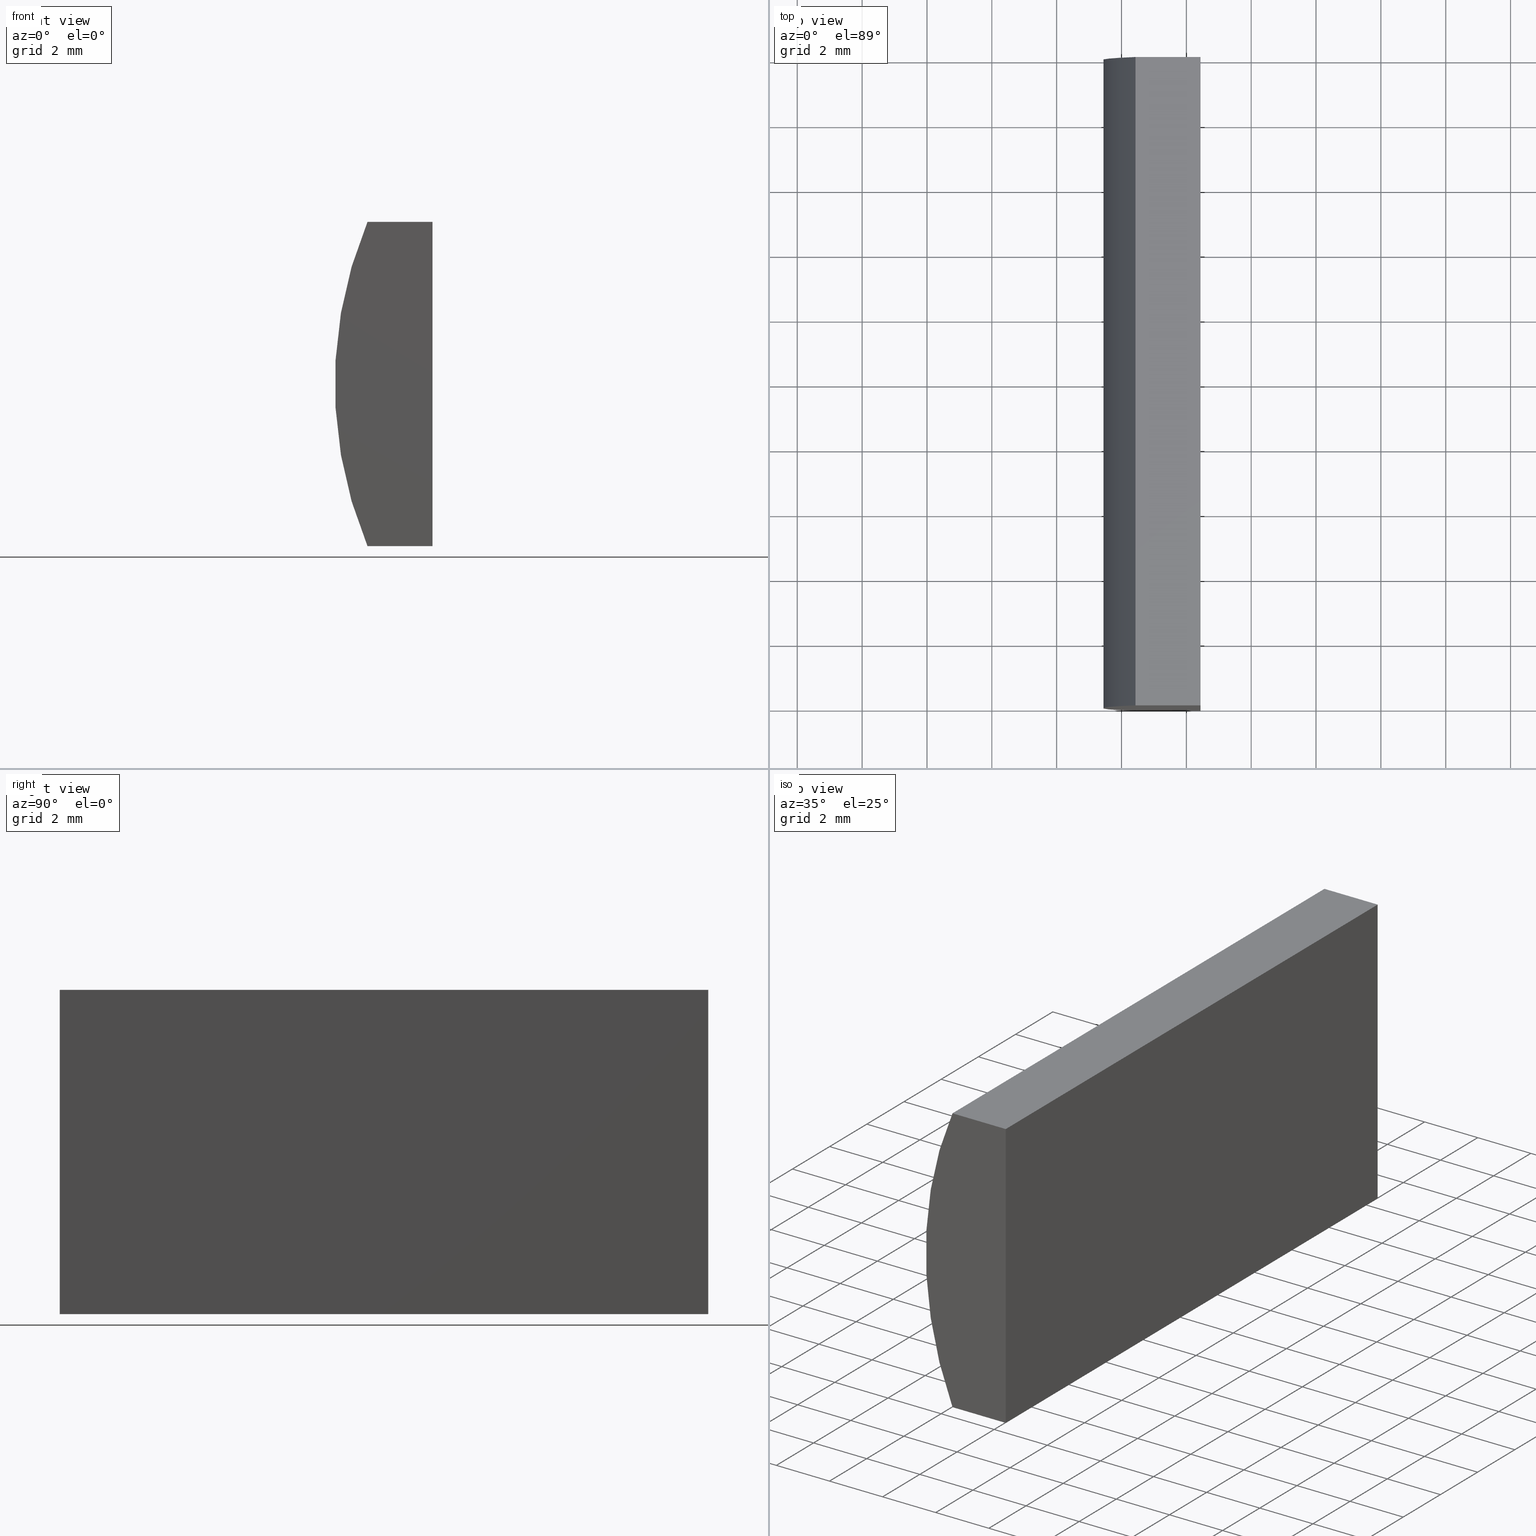
[diagram: canonical four-view strip — front | top / right | iso, engineering-drawing reading convention]
A machine part, canonical four-view strip (front | top / right | iso — engineering-drawing reading convention). The complete STEP part file that produces these views, byte-faithful:
ISO-10303-21;
HEADER;
FILE_DESCRIPTION (( 'STEP AP214' ),
    '1' );
FILE_NAME ('155027.STEP',
    '2019-06-17T06:05:55',
    ( 'user' ),
    ( '΢���й�' ),
    'SwSTEP 2.0',
    'SolidWorks 2016',
    '' );
FILE_SCHEMA (( 'AUTOMOTIVE_DESIGN' ));
ENDSEC;

DATA;
#1 = CARTESIAN_POINT ( 'NONE',  ( -7.568926660739147200, 20.00000000000000000, -5.000000000000000000 ) ) ;
#2 = EDGE_CURVE ( 'NONE', #11, #69, #25, .T. ) ;
#3 = EDGE_LOOP ( 'NONE', ( #35, #84, #134, #34 ) ) ;
#4 =( NAMED_UNIT ( * ) PLANE_ANGLE_UNIT ( ) SI_UNIT ( $, .RADIAN. ) );
#5 = ADVANCED_FACE ( 'NONE', ( #193 ), #18, .T. ) ;
#6 = PRODUCT_RELATED_PRODUCT_CATEGORY ( 'part', '', ( #139 ) ) ;
#7 = FACE_OUTER_BOUND ( 'NONE', #133, .T. ) ;
#8 = MECHANICAL_DESIGN_GEOMETRIC_PRESENTATION_REPRESENTATION (  '', ( #63 ), #100 ) ;
#9 = LINE ( 'NONE', #41, #49 ) ;
#10 = ORIENTED_EDGE ( 'NONE', *, *, #64, .T. ) ;
#11 = VERTEX_POINT ( 'NONE', #94 ) ;
#12 =( LENGTH_UNIT ( ) NAMED_UNIT ( * ) SI_UNIT ( .MILLI., .METRE. ) );
#13 = CARTESIAN_POINT ( 'NONE',  ( -5.564795665148737100, 20.00000000000000000, -5.000000000000000000 ) ) ;
#14 = VECTOR ( 'NONE', #136, 1000.000000000000000 ) ;
#15 = FILL_AREA_STYLE_COLOUR ( '', #83 ) ;
#16 = DIRECTION ( 'NONE',  ( 0.0000000000000000000, 1.000000000000000000, 0.0000000000000000000 ) ) ;
#17 = VERTEX_POINT ( 'NONE', #185 ) ;
#18 = CYLINDRICAL_SURFACE ( 'NONE', #179, 12.93000000000000100 ) ;
#19 = EDGE_LOOP ( 'NONE', ( #137, #152, #123, #161 ) ) ;
#20 = APPLICATION_CONTEXT ( 'automotive_design' ) ;
#21 = PRESENTATION_STYLE_ASSIGNMENT (( #78 ) ) ;
#22 = CARTESIAN_POINT ( 'NONE',  ( -5.564795665148737100, 20.00000000000000000, -5.000000000000000000 ) ) ;
#23 = PLANE ( 'NONE',  #160 ) ;
#24 =( GEOMETRIC_REPRESENTATION_CONTEXT ( 3 ) GLOBAL_UNCERTAINTY_ASSIGNED_CONTEXT ( ( #53 ) ) GLOBAL_UNIT_ASSIGNED_CONTEXT ( ( #199, #157, #201 ) ) REPRESENTATION_CONTEXT ( 'NONE', 'WORKASPACE' ) );
#25 = LINE ( 'NONE', #42, #14 ) ;
#26 = VERTEX_POINT ( 'NONE', #204 ) ;
#27 = SURFACE_SIDE_STYLE ('',( #149 ) ) ;
#28 = EDGE_CURVE ( 'NONE', #92, #26, #9, .T. ) ;
#29 = CARTESIAN_POINT ( 'NONE',  ( -7.568926660739147200, 0.0000000000000000000, 5.000000000000000000 ) ) ;
#30 = VECTOR ( 'NONE', #86, 1000.000000000000000 ) ;
#31 = FILL_AREA_STYLE_COLOUR ( '', #85 ) ;
#32 = CARTESIAN_POINT ( 'NONE',  ( 4.355204334851265500, 0.0000000000000000000, 4.286263797015675000E-017 ) ) ;
#33 = DIRECTION ( 'NONE',  ( -0.0000000000000000000, -1.000000000000000000, -0.0000000000000000000 ) ) ;
#34 = ORIENTED_EDGE ( 'NONE', *, *, #107, .T. ) ;
#35 = ORIENTED_EDGE ( 'NONE', *, *, #147, .T. ) ;
#36 = ADVANCED_FACE ( 'NONE', ( #177 ), #110, .F. ) ;
#37 = LINE ( 'NONE', #112, #74 ) ;
#38 = ORIENTED_EDGE ( 'NONE', *, *, #173, .F. ) ;
#39 = STYLED_ITEM ( 'NONE', ( #58 ), #174 ) ;
#40 = CARTESIAN_POINT ( 'NONE',  ( 4.355204334851265500, 0.0000000000000000000, 4.286263797015675000E-017 ) ) ;
#41 = CARTESIAN_POINT ( 'NONE',  ( -5.564795665148737100, 20.00000000000000000, -5.000000000000000000 ) ) ;
#42 = CARTESIAN_POINT ( 'NONE',  ( -5.564795665148733600, 20.00000000000000000, 5.000000000000000000 ) ) ;
#43 = DIRECTION ( 'NONE',  ( 1.000000000000000000, 0.0000000000000000000, -0.0000000000000000000 ) ) ;
#44 = ORIENTED_EDGE ( 'NONE', *, *, #51, .T. ) ;
#45 = PRODUCT_DEFINITION_FORMATION_WITH_SPECIFIED_SOURCE ( '�κ�', '', #139, .NOT_KNOWN. ) ;
#46 = SURFACE_STYLE_USAGE ( .BOTH. , #27 ) ;
#47 = AXIS2_PLACEMENT_3D ( 'NONE', #200, #50, #76 ) ;
#48 = CARTESIAN_POINT ( 'NONE',  ( -7.568926660739147200, 20.00000000000000000, -5.000000000000000000 ) ) ;
#49 = VECTOR ( 'NONE', #180, 1000.000000000000000 ) ;
#50 = DIRECTION ( 'NONE',  ( 0.0000000000000000000, 1.000000000000000000, 0.0000000000000000000 ) ) ;
#51 = EDGE_CURVE ( 'NONE', #11, #92, #119, .T. ) ;
#52 = VECTOR ( 'NONE', #203, 1000.000000000000000 ) ;
#53 = UNCERTAINTY_MEASURE_WITH_UNIT (LENGTH_MEASURE( 1.000000000000000100E-005 ), #199, 'distance_accuracy_value', 'NONE');
#54 = ORIENTED_EDGE ( 'NONE', *, *, #147, .F. ) ;
#55 = EDGE_CURVE ( 'NONE', #17, #128, #132, .T. ) ;
#56 = ORIENTED_EDGE ( 'NONE', *, *, #59, .T. ) ;
#57 = DIRECTION ( 'NONE',  ( -0.0000000000000000000, -1.000000000000000000, -0.0000000000000000000 ) ) ;
#58 = PRESENTATION_STYLE_ASSIGNMENT (( #46 ) ) ;
#59 = EDGE_CURVE ( 'NONE', #26, #128, #106, .T. ) ;
#60 = DIRECTION ( 'NONE',  ( -3.469446951953614200E-016, -0.0000000000000000000, -1.000000000000000000 ) ) ;
#61 = VERTEX_POINT ( 'NONE', #127 ) ;
#62 = ADVANCED_FACE ( 'NONE', ( #143 ), #125, .F. ) ;
#63 = STYLED_ITEM ( 'NONE', ( #21 ), #65 ) ;
#64 = EDGE_CURVE ( 'NONE', #17, #61, #115, .T. ) ;
#65 = MANIFOLD_SOLID_BREP ( '͹̨-����1', #81 ) ;
#66 = DIRECTION ( 'NONE',  ( 0.0000000000000000000, 0.0000000000000000000, -1.000000000000000000 ) ) ;
#67 = FACE_OUTER_BOUND ( 'NONE', #146, .T. ) ;
#68 =( NAMED_UNIT ( * ) SI_UNIT ( $, .STERADIAN. ) SOLID_ANGLE_UNIT ( ) );
#69 = VERTEX_POINT ( 'NONE', #96 ) ;
#70 = DIRECTION ( 'NONE',  ( -3.469446951953614200E-016, -0.0000000000000000000, -1.000000000000000000 ) ) ;
#71 = APPLICATION_CONTEXT ( 'automotive_design' ) ;
#72 = ORIENTED_EDGE ( 'NONE', *, *, #80, .F. ) ;
#73 = FILL_AREA_STYLE ('',( #31 ) ) ;
#74 = VECTOR ( 'NONE', #60, 1000.000000000000000 ) ;
#75 = CARTESIAN_POINT ( 'NONE',  ( -7.568926660739147200, 20.00000000000000000, 5.000000000000000000 ) ) ;
#76 = DIRECTION ( 'NONE',  ( 0.0000000000000000000, -0.0000000000000000000, 1.000000000000000000 ) ) ;
#77 = CARTESIAN_POINT ( 'NONE',  ( -7.568926660739147200, 20.00000000000000000, 5.000000000000000000 ) ) ;
#78 = SURFACE_STYLE_USAGE ( .BOTH. , #155 ) ;
#79 = ADVANCED_FACE ( 'NONE', ( #7 ), #151, .T. ) ;
#80 = EDGE_CURVE ( 'NONE', #69, #26, #37, .T. ) ;
#81 = CLOSED_SHELL ( 'NONE', ( #5, #99, #62, #121, #79, #36 ) ) ;
#82 = SURFACE_STYLE_FILL_AREA ( #73 ) ;
#83 = COLOUR_RGB ( '',1.000000000000000000, 1.000000000000000000, 1.000000000000000000 ) ;
#84 = ORIENTED_EDGE ( 'NONE', *, *, #2, .F. ) ;
#85 = COLOUR_RGB ( '',1.000000000000000000, 1.000000000000000000, 1.000000000000000000 ) ;
#86 = DIRECTION ( 'NONE',  ( -1.000000000000000000, -0.0000000000000000000, -0.0000000000000000000 ) ) ;
#87 = CARTESIAN_POINT ( 'NONE',  ( 0.0000000000000000000, 0.0000000000000000000, 0.0000000000000000000 ) ) ;
#88 = DIRECTION ( 'NONE',  ( 0.0000000000000000000, 0.0000000000000000000, 1.000000000000000000 ) ) ;
#89 = DIRECTION ( 'NONE',  ( -0.0000000000000000000, -1.000000000000000000, -0.0000000000000000000 ) ) ;
#90 = CARTESIAN_POINT ( 'NONE',  ( -5.564795665148737100, 20.00000000000000000, -5.000000000000000000 ) ) ;
#91 = DIRECTION ( 'NONE',  ( 3.469446951953614200E-016, 0.0000000000000000000, 1.000000000000000000 ) ) ;
#92 = VERTEX_POINT ( 'NONE', #22 ) ;
#93 = LINE ( 'NONE', #153, #159 ) ;
#94 = CARTESIAN_POINT ( 'NONE',  ( -5.564795665148733600, 20.00000000000000000, 5.000000000000000000 ) ) ;
#95 = APPLICATION_PROTOCOL_DEFINITION ( 'draft international standard', 'automotive_design', 1998, #71 ) ;
#96 = CARTESIAN_POINT ( 'NONE',  ( -5.564795665148733600, 0.0000000000000000000, 5.000000000000000000 ) ) ;
#97 = CARTESIAN_POINT ( 'NONE',  ( -7.568926660739147200, 20.00000000000000000, -5.000000000000000000 ) ) ;
#98 = AXIS2_PLACEMENT_3D ( 'NONE', #77, #171, #175 ) ;
#99 = ADVANCED_FACE ( 'NONE', ( #198 ), #118, .F. ) ;
#100 =( GEOMETRIC_REPRESENTATION_CONTEXT ( 3 ) GLOBAL_UNCERTAINTY_ASSIGNED_CONTEXT ( ( #154 ) ) GLOBAL_UNIT_ASSIGNED_CONTEXT ( ( #129, #109, #181 ) ) REPRESENTATION_CONTEXT ( 'NONE', 'WORKASPACE' ) );
#101 = ORIENTED_EDGE ( 'NONE', *, *, #59, .F. ) ;
#102 = SHAPE_DEFINITION_REPRESENTATION ( #190, #174 ) ;
#103 = UNCERTAINTY_MEASURE_WITH_UNIT (LENGTH_MEASURE( 1.000000000000000100E-005 ), #12, 'distance_accuracy_value', 'NONE');
#104 = AXIS2_PLACEMENT_3D ( 'NONE', #144, #189, #88 ) ;
#105 = FILL_AREA_STYLE ('',( #15 ) ) ;
#106 = LINE ( 'NONE', #117, #176 ) ;
#107 = EDGE_CURVE ( 'NONE', #61, #148, #170, .T. ) ;
#108 = CARTESIAN_POINT ( 'NONE',  ( 4.355204334851265500, 20.00000000000000000, 4.286263797015675000E-017 ) ) ;
#109 =( NAMED_UNIT ( * ) PLANE_ANGLE_UNIT ( ) SI_UNIT ( $, .RADIAN. ) );
#110 = PLANE ( 'NONE',  #182 ) ;
#111 = DIRECTION ( 'NONE',  ( 1.000000000000000000, 0.0000000000000000000, 0.0000000000000000000 ) ) ;
#112 = CARTESIAN_POINT ( 'NONE',  ( -5.564795665148737100, 0.0000000000000000000, -5.000000000000000000 ) ) ;
#113 = ORIENTED_EDGE ( 'NONE', *, *, #80, .T. ) ;
#114 = CARTESIAN_POINT ( 'NONE',  ( -7.568926660739147200, 20.00000000000000000, 5.000000000000000000 ) ) ;
#115 = CIRCLE ( 'NONE', #104, 12.93000000000000100 ) ;
#116 = DIRECTION ( 'NONE',  ( 0.0000000000000000000, -0.0000000000000000000, 1.000000000000000000 ) ) ;
#117 = CARTESIAN_POINT ( 'NONE',  ( -7.568926660739147200, 0.0000000000000000000, -5.000000000000000000 ) ) ;
#118 = PLANE ( 'NONE',  #98 ) ;
#119 = LINE ( 'NONE', #90, #166 ) ;
#120 = AXIS2_PLACEMENT_3D ( 'NONE', #40, #16, #168 ) ;
#121 = ADVANCED_FACE ( 'NONE', ( #67 ), #23, .F. ) ;
#122 = VECTOR ( 'NONE', #57, 1000.000000000000000 ) ;
#123 = ORIENTED_EDGE ( 'NONE', *, *, #64, .F. ) ;
#124 = EDGE_LOOP ( 'NONE', ( #38, #101, #72, #54 ) ) ;
#125 = PLANE ( 'NONE',  #126 ) ;
#126 = AXIS2_PLACEMENT_3D ( 'NONE', #13, #156, #91 ) ;
#127 = CARTESIAN_POINT ( 'NONE',  ( -7.568926660739147200, 20.00000000000000000, 5.000000000000000000 ) ) ;
#128 = VERTEX_POINT ( 'NONE', #183 ) ;
#129 =( LENGTH_UNIT ( ) NAMED_UNIT ( * ) SI_UNIT ( .MILLI., .METRE. ) );
#130 = ORIENTED_EDGE ( 'NONE', *, *, #192, .F. ) ;
#131 = AXIS2_PLACEMENT_3D ( 'NONE', #87, #191, #111 ) ;
#132 = LINE ( 'NONE', #97, #122 ) ;
#133 = EDGE_LOOP ( 'NONE', ( #10, #142, #44, #178 ) ) ;
#134 = ORIENTED_EDGE ( 'NONE', *, *, #150, .F. ) ;
#135 = CIRCLE ( 'NONE', #120, 12.93000000000000100 ) ;
#136 = DIRECTION ( 'NONE',  ( -0.0000000000000000000, -1.000000000000000000, -0.0000000000000000000 ) ) ;
#137 = ORIENTED_EDGE ( 'NONE', *, *, #173, .T. ) ;
#138 = MECHANICAL_DESIGN_GEOMETRIC_PRESENTATION_REPRESENTATION (  '', ( #39 ), #186 ) ;
#139 = PRODUCT ( '155027', '155027', '', ( #188 ) ) ;
#140 = DIRECTION ( 'NONE',  ( -1.000000000000000000, -0.0000000000000000000, -0.0000000000000000000 ) ) ;
#141 = ORIENTED_EDGE ( 'NONE', *, *, #28, .T. ) ;
#142 = ORIENTED_EDGE ( 'NONE', *, *, #150, .T. ) ;
#143 = FACE_OUTER_BOUND ( 'NONE', #162, .T. ) ;
#144 = CARTESIAN_POINT ( 'NONE',  ( 4.355204334851265500, 20.00000000000000000, 4.286263797015675000E-017 ) ) ;
#145 = PRODUCT_DEFINITION ( 'δ֪', '', #45, #194 ) ;
#146 = EDGE_LOOP ( 'NONE', ( #56, #165, #130, #141 ) ) ;
#147 = EDGE_CURVE ( 'NONE', #148, #69, #93, .T. ) ;
#148 = VERTEX_POINT ( 'NONE', #29 ) ;
#149 = SURFACE_STYLE_FILL_AREA ( #105 ) ;
#150 = EDGE_CURVE ( 'NONE', #61, #11, #167, .T. ) ;
#151 = PLANE ( 'NONE',  #47 ) ;
#152 = ORIENTED_EDGE ( 'NONE', *, *, #107, .F. ) ;
#153 = CARTESIAN_POINT ( 'NONE',  ( -7.568926660739147200, 0.0000000000000000000, 5.000000000000000000 ) ) ;
#154 = UNCERTAINTY_MEASURE_WITH_UNIT (LENGTH_MEASURE( 1.000000000000000100E-005 ), #129, 'distance_accuracy_value', 'NONE');
#155 = SURFACE_SIDE_STYLE ('',( #82 ) ) ;
#156 = DIRECTION ( 'NONE',  ( -1.000000000000000000, 0.0000000000000000000, 3.469446951953614200E-016 ) ) ;
#157 =( NAMED_UNIT ( * ) PLANE_ANGLE_UNIT ( ) SI_UNIT ( $, .RADIAN. ) );
#158 = DIRECTION ( 'NONE',  ( 0.0000000000000000000, 1.000000000000000000, 0.0000000000000000000 ) ) ;
#159 = VECTOR ( 'NONE', #172, 1000.000000000000000 ) ;
#160 = AXIS2_PLACEMENT_3D ( 'NONE', #1, #184, #43 ) ;
#161 = ORIENTED_EDGE ( 'NONE', *, *, #55, .T. ) ;
#162 = EDGE_LOOP ( 'NONE', ( #113, #197, #187, #169 ) ) ;
#163 = VECTOR ( 'NONE', #89, 1000.000000000000000 ) ;
#164 = PRESENTATION_LAYER_ASSIGNMENT (  '', '', ( #39 ) ) ;
#165 = ORIENTED_EDGE ( 'NONE', *, *, #55, .F. ) ;
#166 = VECTOR ( 'NONE', #70, 1000.000000000000000 ) ;
#167 = LINE ( 'NONE', #114, #52 ) ;
#168 = DIRECTION ( 'NONE',  ( 0.0000000000000000000, 0.0000000000000000000, 1.000000000000000000 ) ) ;
#169 = ORIENTED_EDGE ( 'NONE', *, *, #2, .T. ) ;
#170 = LINE ( 'NONE', #75, #163 ) ;
#171 = DIRECTION ( 'NONE',  ( 0.0000000000000000000, 0.0000000000000000000, -1.000000000000000000 ) ) ;
#172 = DIRECTION ( 'NONE',  ( 1.000000000000000000, 0.0000000000000000000, 0.0000000000000000000 ) ) ;
#173 = EDGE_CURVE ( 'NONE', #128, #148, #135, .T. ) ;
#174 = ADVANCED_BREP_SHAPE_REPRESENTATION ( '155027', ( #65, #131 ), #24 ) ;
#175 = DIRECTION ( 'NONE',  ( -1.000000000000000000, 0.0000000000000000000, -0.0000000000000000000 ) ) ;
#176 = VECTOR ( 'NONE', #140, 1000.000000000000000 ) ;
#177 = FACE_OUTER_BOUND ( 'NONE', #124, .T. ) ;
#178 = ORIENTED_EDGE ( 'NONE', *, *, #192, .T. ) ;
#179 = AXIS2_PLACEMENT_3D ( 'NONE', #108, #33, #66 ) ;
#180 = DIRECTION ( 'NONE',  ( -0.0000000000000000000, -1.000000000000000000, -0.0000000000000000000 ) ) ;
#181 =( NAMED_UNIT ( * ) SI_UNIT ( $, .STERADIAN. ) SOLID_ANGLE_UNIT ( ) );
#182 = AXIS2_PLACEMENT_3D ( 'NONE', #32, #158, #116 ) ;
#183 = CARTESIAN_POINT ( 'NONE',  ( -7.568926660739147200, 0.0000000000000000000, -5.000000000000000000 ) ) ;
#184 = DIRECTION ( 'NONE',  ( 0.0000000000000000000, 0.0000000000000000000, 1.000000000000000000 ) ) ;
#185 = CARTESIAN_POINT ( 'NONE',  ( -7.568926660739147200, 20.00000000000000000, -5.000000000000000000 ) ) ;
#186 =( GEOMETRIC_REPRESENTATION_CONTEXT ( 3 ) GLOBAL_UNCERTAINTY_ASSIGNED_CONTEXT ( ( #103 ) ) GLOBAL_UNIT_ASSIGNED_CONTEXT ( ( #12, #4, #68 ) ) REPRESENTATION_CONTEXT ( 'NONE', 'WORKASPACE' ) );
#187 = ORIENTED_EDGE ( 'NONE', *, *, #51, .F. ) ;
#188 = PRODUCT_CONTEXT ( 'NONE', #20, 'mechanical' ) ;
#189 = DIRECTION ( 'NONE',  ( 0.0000000000000000000, 1.000000000000000000, 0.0000000000000000000 ) ) ;
#190 = PRODUCT_DEFINITION_SHAPE ( 'NONE', 'NONE',  #145 ) ;
#191 = DIRECTION ( 'NONE',  ( 0.0000000000000000000, 0.0000000000000000000, 1.000000000000000000 ) ) ;
#192 = EDGE_CURVE ( 'NONE', #92, #17, #195, .T. ) ;
#193 = FACE_OUTER_BOUND ( 'NONE', #19, .T. ) ;
#194 = PRODUCT_DEFINITION_CONTEXT ( 'detailed design', #71, 'design' ) ;
#195 = LINE ( 'NONE', #48, #30 ) ;
#196 = PRESENTATION_LAYER_ASSIGNMENT (  '', '', ( #63 ) ) ;
#197 = ORIENTED_EDGE ( 'NONE', *, *, #28, .F. ) ;
#198 = FACE_OUTER_BOUND ( 'NONE', #3, .T. ) ;
#199 =( LENGTH_UNIT ( ) NAMED_UNIT ( * ) SI_UNIT ( .MILLI., .METRE. ) );
#200 = CARTESIAN_POINT ( 'NONE',  ( 4.355204334851265500, 20.00000000000000000, 4.286263797015675000E-017 ) ) ;
#201 =( NAMED_UNIT ( * ) SI_UNIT ( $, .STERADIAN. ) SOLID_ANGLE_UNIT ( ) );
#202 = APPLICATION_PROTOCOL_DEFINITION ( 'draft international standard', 'automotive_design', 1998, #20 ) ;
#203 = DIRECTION ( 'NONE',  ( 1.000000000000000000, 0.0000000000000000000, 0.0000000000000000000 ) ) ;
#204 = CARTESIAN_POINT ( 'NONE',  ( -5.564795665148737100, 0.0000000000000000000, -5.000000000000000000 ) ) ;
ENDSEC;
END-ISO-10303-21;
